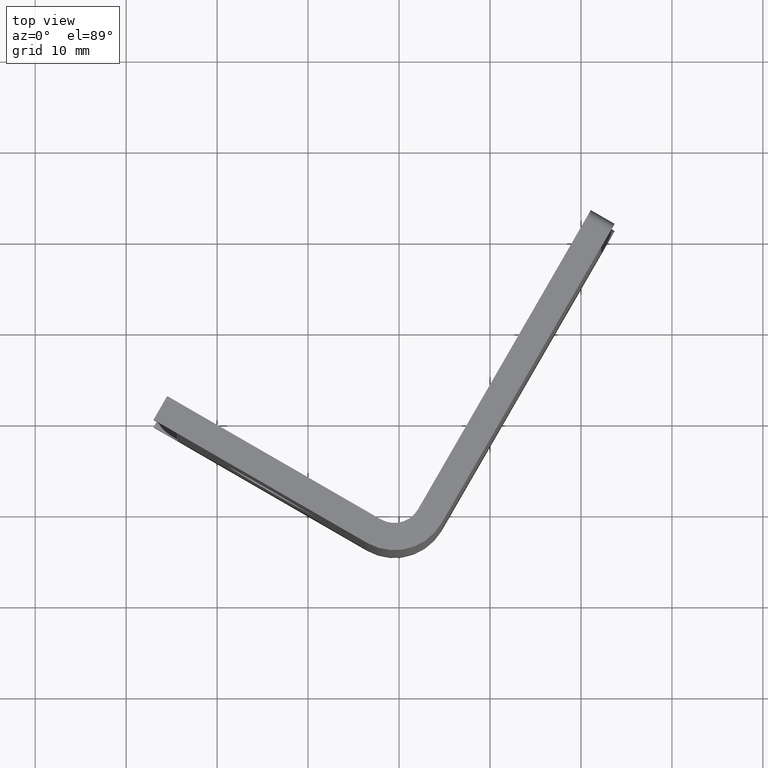
[diagram: clean part render]
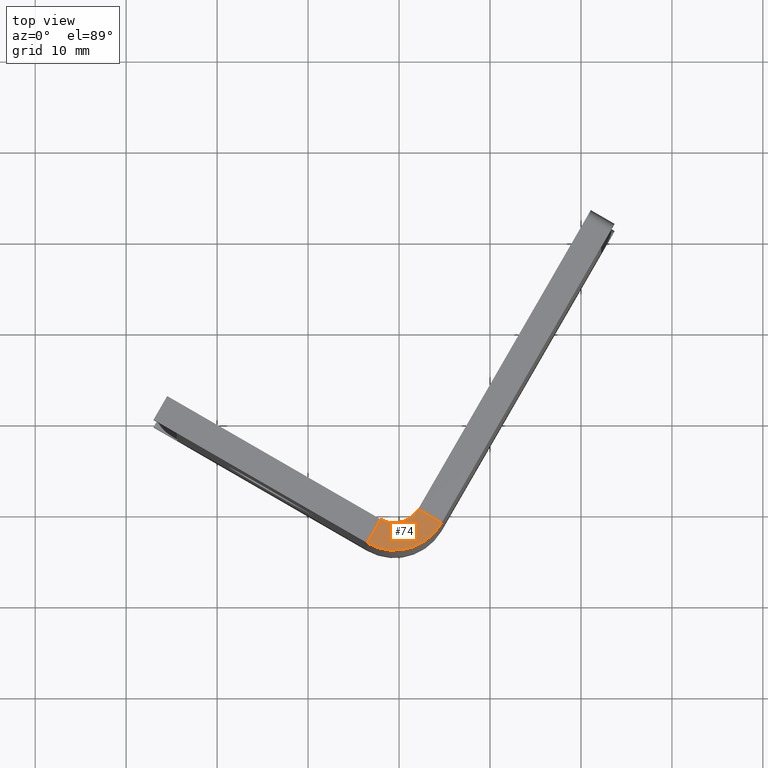
[diagram: same view with one face highlighted and labeled with its STEP entity id]
A machine part, top view. The second image highlights one B-rep face of the part: STEP entity #74.
In plain terms, the highlighted planar face has unit normal (0, -0, 1).
Its self-contained STEP definition (entity closure, byte-faithful):
#11 = DIRECTION ( 'NONE',  ( -1.000000000000000000, 0.000000000000000000, 0.000000000000000000 ) ) ;
#69 = LINE ( 'NONE', #266, #112 ) ;
#71 = CIRCLE ( 'NONE', #394, 3.000000000000002665 ) ;
#74 = ADVANCED_FACE ( 'NONE', ( #911 ), #268, .T. ) ;
#77 = DIRECTION ( 'NONE',  ( 0.000000000000000000, 0.000000000000000000, 1.000000000000000000 ) ) ;
#112 = VECTOR ( 'NONE', #128, 1000.000000000000114 ) ;
#121 = LINE ( 'NONE', #619, #823 ) ;
#126 = VERTEX_POINT ( 'NONE', #590 ) ;
#128 = DIRECTION ( 'NONE',  ( 0.5000000000000124345, 0.8660254037844314912, -0.000000000000000000 ) ) ;
#133 = CARTESIAN_POINT ( 'NONE',  ( 609.4867986727433617, 1031.447854427240827, 25.00000000000000000 ) ) ;
#195 = DIRECTION ( 'NONE',  ( -0.8660254037844363761, 0.5000000000000041078, 0.000000000000000000 ) ) ;
#227 = VERTEX_POINT ( 'NONE', #558 ) ;
#266 = CARTESIAN_POINT ( 'NONE',  ( 607.9867986727432481, 1028.849778215887454, 25.00000000000000000 ) ) ;
#268 = PLANE ( 'NONE',  #430 ) ;
#366 = CARTESIAN_POINT ( 'NONE',  ( 609.4867986727433617, 1031.447854427240827, 25.00000000000000000 ) ) ;
#394 = AXIS2_PLACEMENT_3D ( 'NONE', #366, #633, #11 ) ;
#418 = DIRECTION ( 'NONE',  ( 1.000000000000000000, 0.000000000000000000, 0.000000000000000000 ) ) ;
#430 = AXIS2_PLACEMENT_3D ( 'NONE', #133, #842, #418 ) ;
#480 = EDGE_CURVE ( 'NONE', #227, #547, #71, .T. ) ;
#481 = CIRCLE ( 'NONE', #667, 6.000000000000005329 ) ;
#492 = EDGE_CURVE ( 'NONE', #126, #658, #481, .T. ) ;
#511 = CARTESIAN_POINT ( 'NONE',  ( 614.6829510954501075, 1028.447854427240600, 25.00000000000000000 ) ) ;
#547 = VERTEX_POINT ( 'NONE', #883 ) ;
#558 = CARTESIAN_POINT ( 'NONE',  ( 607.9867986727432481, 1028.849778215887454, 25.00000000000000000 ) ) ;
#590 = CARTESIAN_POINT ( 'NONE',  ( 606.4867986727433617, 1026.251702004534081, 25.00000000000000000 ) ) ;
#619 = CARTESIAN_POINT ( 'NONE',  ( 612.0848748840968483, 1029.947854427240600, 25.00000000000000000 ) ) ;
#633 = DIRECTION ( 'NONE',  ( -0.000000000000000000, -0.000000000000000000, 1.000000000000000000 ) ) ;
#641 = CARTESIAN_POINT ( 'NONE',  ( 609.4867986727433617, 1031.447854427240827, 25.00000000000000000 ) ) ;
#658 = VERTEX_POINT ( 'NONE', #511 ) ;
#659 = ORIENTED_EDGE ( 'NONE', *, *, #835, .F. ) ;
#667 = AXIS2_PLACEMENT_3D ( 'NONE', #641, #77, #698 ) ;
#676 = ORIENTED_EDGE ( 'NONE', *, *, #480, .F. ) ;
#681 = ORIENTED_EDGE ( 'NONE', *, *, #492, .T. ) ;
#698 = DIRECTION ( 'NONE',  ( -1.000000000000000000, 0.000000000000000000, 0.000000000000000000 ) ) ;
#823 = VECTOR ( 'NONE', #195, 1000.000000000000000 ) ;
#835 = EDGE_CURVE ( 'NONE', #126, #227, #69, .T. ) ;
#842 = DIRECTION ( 'NONE',  ( 0.000000000000000000, -0.000000000000000000, 1.000000000000000000 ) ) ;
#858 = EDGE_LOOP ( 'NONE', ( #659, #681, #884, #676 ) ) ;
#883 = CARTESIAN_POINT ( 'NONE',  ( 612.0848748840968483, 1029.947854427240600, 25.00000000000000000 ) ) ;
#884 = ORIENTED_EDGE ( 'NONE', *, *, #901, .T. ) ;
#901 = EDGE_CURVE ( 'NONE', #658, #547, #121, .T. ) ;
#911 = FACE_OUTER_BOUND ( 'NONE', #858, .T. ) ;